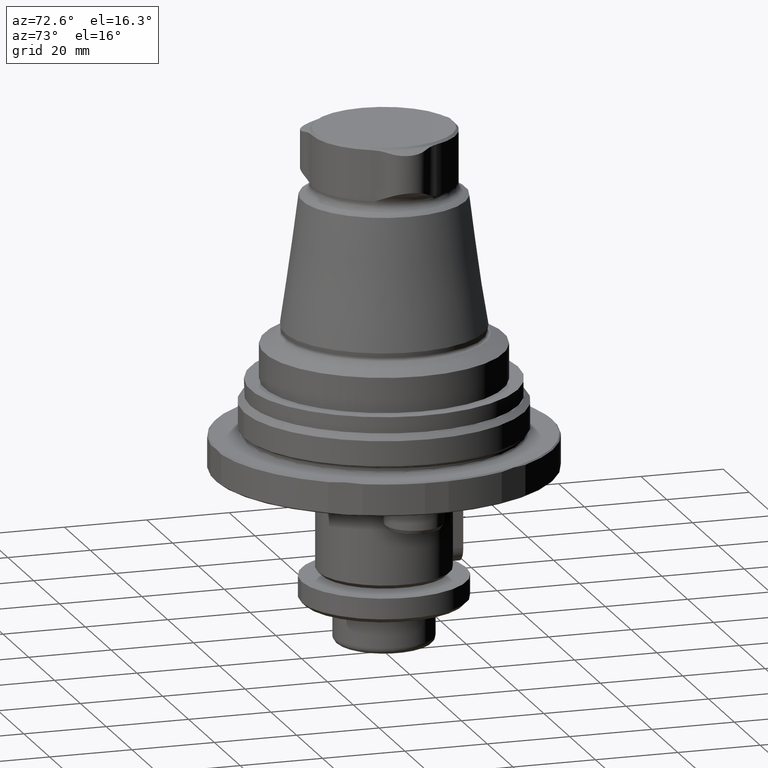
[diagram: clean part render]
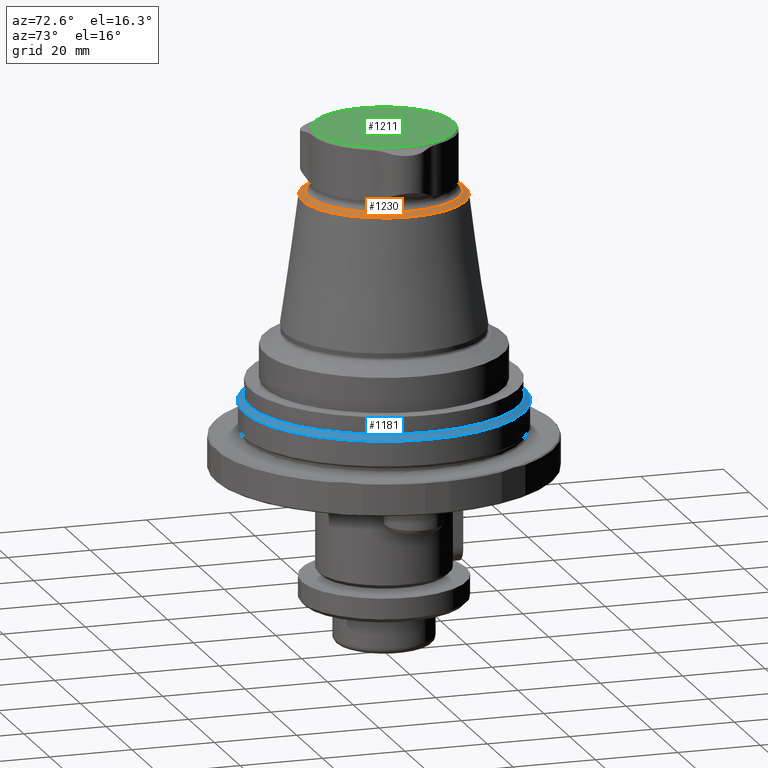
[diagram: same view with three faces highlighted in distinct colors, each labeled with its STEP entity id]
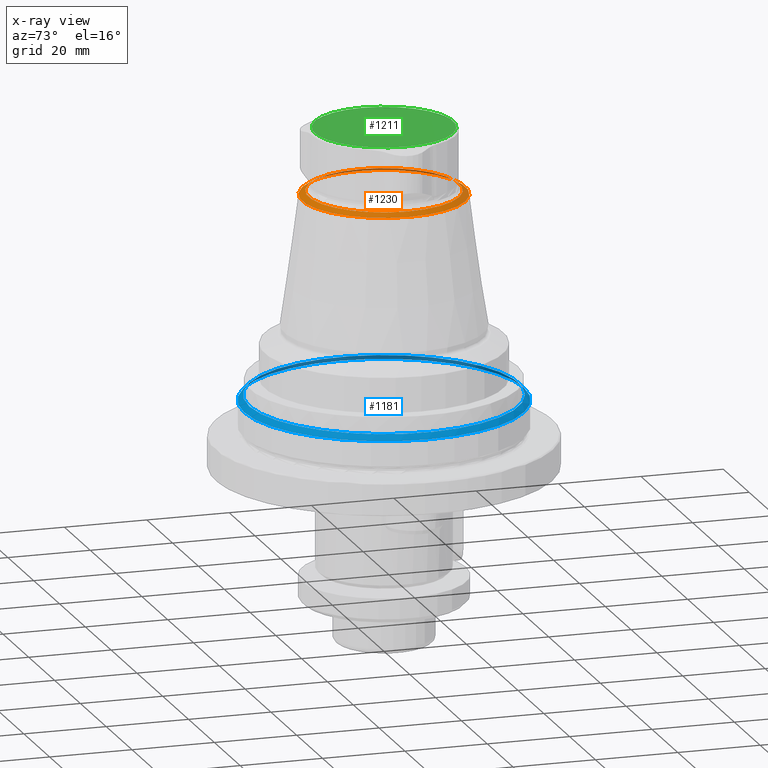
[diagram: x-ray of the same camera — body ghosted, the three highlighted faces saturated]
A machine part, auxiliary view with three faces highlighted in distinct colors.
The next image is the same camera in x-ray (body ghosted, the three faces saturated) — at least one of them is partly hidden behind the body in this view.
Their STEP definitions:

[orange] entity #1230 — the highlighted conical surface has half-angle 60 deg.
#214=CONICAL_SURFACE('',#1397,19.820622068747,1.0471975511966);
#524=ORIENTED_EDGE('',*,*,#693,.T.);
#525=ORIENTED_EDGE('',*,*,#694,.F.);
#693=EDGE_CURVE('',#811,#811,#887,.T.);
#694=EDGE_CURVE('',#812,#812,#888,.T.);
#811=VERTEX_POINT('',#2287);
#812=VERTEX_POINT('',#2290);
#887=CIRCLE('',#1396,18.28);
#888=CIRCLE('',#1398,19.820622068747);
#1004=EDGE_LOOP('',(#524));
#1005=EDGE_LOOP('',(#525));
#1129=FACE_BOUND('',#1004,.T.);
#1130=FACE_BOUND('',#1005,.T.);
#1230=ADVANCED_FACE('',(#1129,#1130),#214,.T.);
#1396=AXIS2_PLACEMENT_3D('',#2286,#1740,#1741);
#1397=AXIS2_PLACEMENT_3D('',#2288,#1742,#1743);
#1398=AXIS2_PLACEMENT_3D('',#2289,#1744,#1745);
#1740=DIRECTION('',(1.22461692971323E-16,1.66533453693774E-16,-1.));
#1741=DIRECTION('',(-1.,2.03939686757009E-32,-1.22461692971323E-16));
#1742=DIRECTION('',(1.22461692971323E-16,1.66533453693774E-16,-1.));
#1743=DIRECTION('',(-1.,2.03939686757009E-32,-1.22461692971323E-16));
#1744=DIRECTION('',(1.22461692971323E-16,1.66533453693774E-16,-1.));
#1745=DIRECTION('',(-1.,2.03939686757009E-32,-1.22461692971323E-16));
#2286=CARTESIAN_POINT('',(1.86742218163645E-15,6.51934096087875E-16,57.7519331303847));
#2287=CARTESIAN_POINT('',(-18.28,6.51934096087875E-16,57.7519331303847));
#2288=CARTESIAN_POINT('',(1.97634923270405E-15,8.00062033688847E-16,56.8624545642742));
#2289=CARTESIAN_POINT('',(1.97634923270405E-15,8.00062033688847E-16,56.8624545642742));
#2290=CARTESIAN_POINT('',(-19.820622068747,8.00062033688847E-16,56.8624545642742));

[blue] entity #1181 — the highlighted conical surface has half-angle 45 deg.
#204=CONICAL_SURFACE('',#1311,32.6757350979542,0.785398163397448);
#307=ORIENTED_EDGE('',*,*,#588,.F.);
#308=ORIENTED_EDGE('',*,*,#540,.T.);
#540=EDGE_CURVE('',#701,#701,#819,.T.);
#588=EDGE_CURVE('',#739,#739,#850,.T.);
#701=VERTEX_POINT('',#1775);
#739=VERTEX_POINT('',#1917);
#819=CIRCLE('',#1252,32.6757350979542);
#850=CIRCLE('',#1310,34.);
#942=EDGE_LOOP('',(#307));
#943=EDGE_LOOP('',(#308));
#1067=FACE_BOUND('',#942,.T.);
#1068=FACE_BOUND('',#943,.T.);
#1181=ADVANCED_FACE('',(#1067,#1068),#204,.T.);
#1252=AXIS2_PLACEMENT_3D('',#1774,#1416,#1417);
#1310=AXIS2_PLACEMENT_3D('',#1916,#1540,#1541);
#1311=AXIS2_PLACEMENT_3D('',#1918,#1542,#1543);
#1416=DIRECTION('',(-1.04225259501902E-17,1.66533453693774E-16,-1.));
#1417=DIRECTION('',(0.,-1.,-3.33066907387547E-16));
#1540=DIRECTION('',(-1.04225259501902E-17,1.66533453693774E-16,-1.));
#1541=DIRECTION('',(0.,-1.,-3.33066907387547E-16));
#1542=DIRECTION('',(-1.04225259501902E-17,1.66533453693774E-16,-1.));
#1543=DIRECTION('',(0.,-1.,-3.33066907387547E-16));
#1774=CARTESIAN_POINT('',(7.88481952197782E-15,8.86664104881377E-15,8.42426490204583));
#1775=CARTESIAN_POINT('',(7.88481952197782E-15,-32.6757350979542,8.42426490204582));
#1916=CARTESIAN_POINT('',(7.87101733667132E-15,9.08717545655691E-15,7.09999999999999));
#1917=CARTESIAN_POINT('',(7.87101733667132E-15,-34.,7.09999999999998));
#1918=CARTESIAN_POINT('',(7.88481952197782E-15,8.86664104881377E-15,8.42426490204583));

[green] entity #1211 — the highlighted planar face has unit normal (-0, -0, 1).
#42=PLANE('',#1366);
#429=ORIENTED_EDGE('',*,*,#646,.F.);
#646=EDGE_CURVE('',#779,#779,#876,.T.);
#779=VERTEX_POINT('',#2094);
#876=CIRCLE('',#1367,16.78);
#982=EDGE_LOOP('',(#429));
#1107=FACE_BOUND('',#982,.T.);
#1211=ADVANCED_FACE('',(#1107),#42,.T.);
#1366=AXIS2_PLACEMENT_3D('',#2092,#1668,#1669);
#1367=AXIS2_PLACEMENT_3D('',#2093,#1670,#1671);
#1668=DIRECTION('',(-1.22461692971323E-16,-1.66533453693774E-16,1.));
#1669=DIRECTION('',(1.,-2.03939686757009E-32,1.22461692971323E-16));
#1670=DIRECTION('',(1.22461692971323E-16,1.66533453693774E-16,-1.));
#1671=DIRECTION('',(-1.,2.03939686757009E-32,-1.22461692971323E-16));
#2092=CARTESIAN_POINT('',(-16.78,-1.88737914186277E-15,73.));
#2093=CARTESIAN_POINT('',(1.18098243419732E-19,-1.88737914186277E-15,73.));
#2094=CARTESIAN_POINT('',(-16.78,-1.88737914186277E-15,73.));